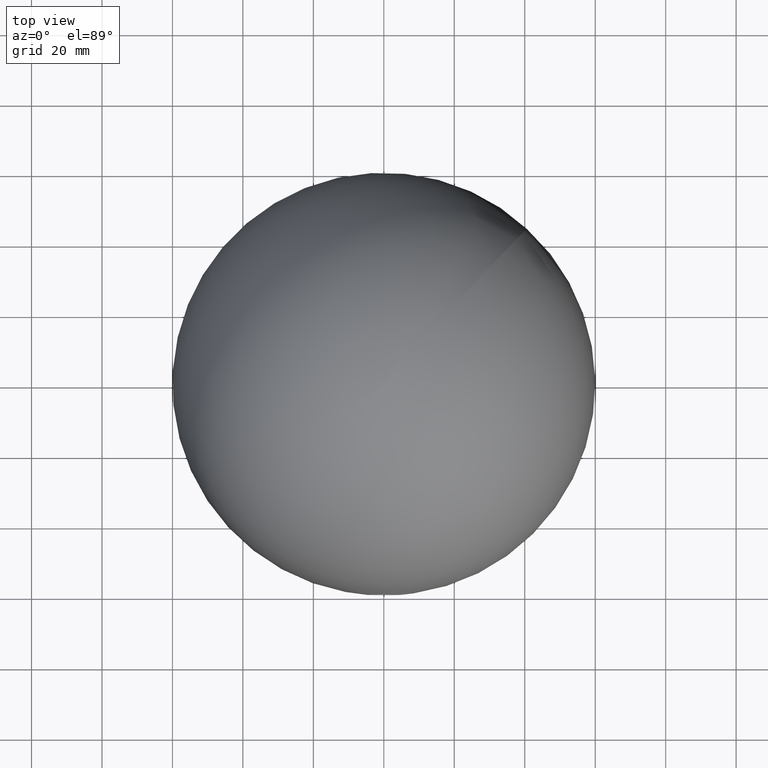
[diagram: clean part render]
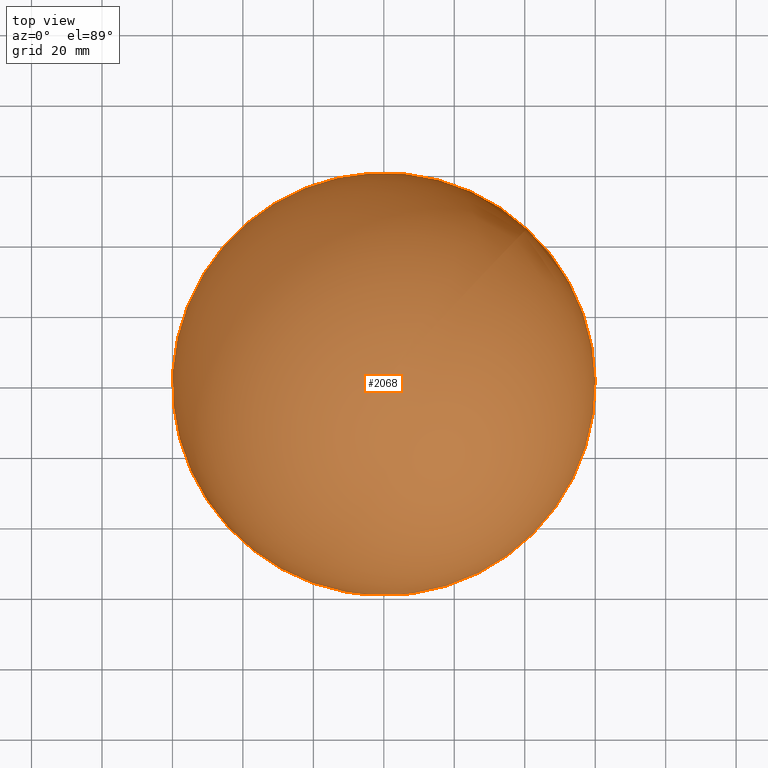
[diagram: same view with one face highlighted and labeled with its STEP entity id]
A machine part, top view. The second image highlights one B-rep face of the part: STEP entity #2068.
In plain terms, the highlighted spherical surface has radius 60 mm.
Its self-contained STEP definition (entity closure, byte-faithful):
#1640 = EDGE_LOOP ( 'NONE', ( #6190 ) ) ;
#1823 = CIRCLE ( 'NONE', #1861, 4.746536731185478300 ) ;
#1861 = AXIS2_PLACEMENT_3D ( 'NONE', #5882, #6882, #3007 ) ;
#2068 = ADVANCED_FACE ( 'NONE', ( #3584 ), #8518, .T. ) ;
#3007 = DIRECTION ( 'NONE',  ( 0.0000000000000000000, 0.0000000000000000000, 1.000000000000000000 ) ) ;
#3584 = FACE_OUTER_BOUND ( 'NONE', #1640, .T. ) ;
#4160 = AXIS2_PLACEMENT_3D ( 'NONE', #11080, #4238, #11131 ) ;
#4238 = DIRECTION ( 'NONE',  ( -0.0000000000000000000, 0.0000000000000000000, -1.000000000000000000 ) ) ;
#5795 = CARTESIAN_POINT ( 'NONE',  ( -1.394373279736362900E-031, 0.1880414209707789700, 4.746536731185478300 ) ) ;
#5882 = CARTESIAN_POINT ( 'NONE',  ( -1.394373279736362900E-031, 0.1880414209707789700, 0.0000000000000000000 ) ) ;
#6190 = ORIENTED_EDGE ( 'NONE', *, *, #7497, .T. ) ;
#6550 = VERTEX_POINT ( 'NONE', #5795 ) ;
#6882 = DIRECTION ( 'NONE',  ( -0.0000000000000000000, 1.000000000000000000, -0.0000000000000000000 ) ) ;
#7497 = EDGE_CURVE ( 'NONE', #6550, #6550, #1823, .T. ) ;
#8518 = SPHERICAL_SURFACE ( 'NONE', #4160, 60.00000000000000000 ) ;
#11080 = CARTESIAN_POINT ( 'NONE',  ( -1.394373279736362900E-031, 60.00000000000000000, 0.0000000000000000000 ) ) ;
#11131 = DIRECTION ( 'NONE',  ( -1.000000000000000000, -2.312964634635743000E-016, 0.0000000000000000000 ) ) ;